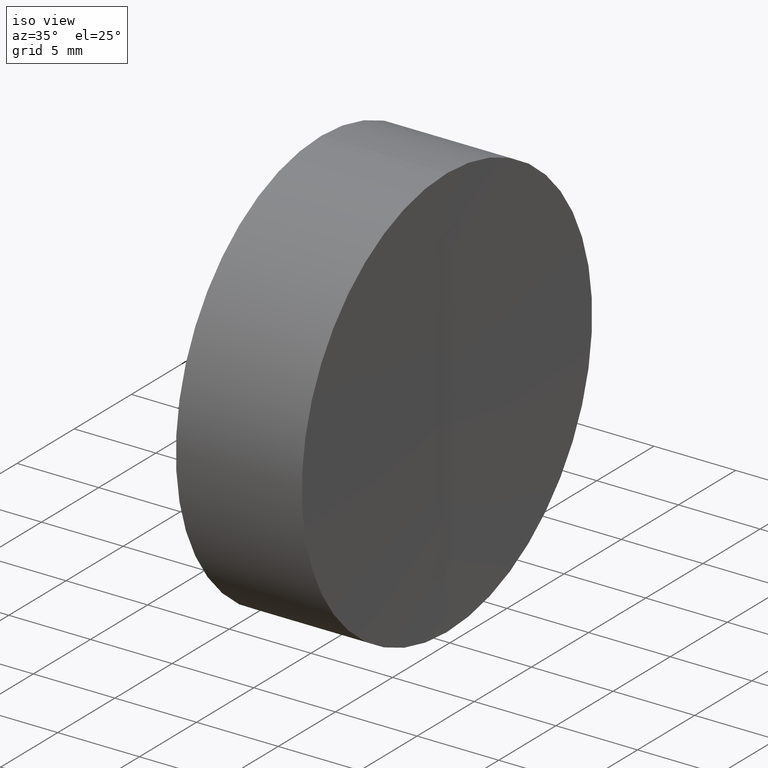
[diagram: clean part render]
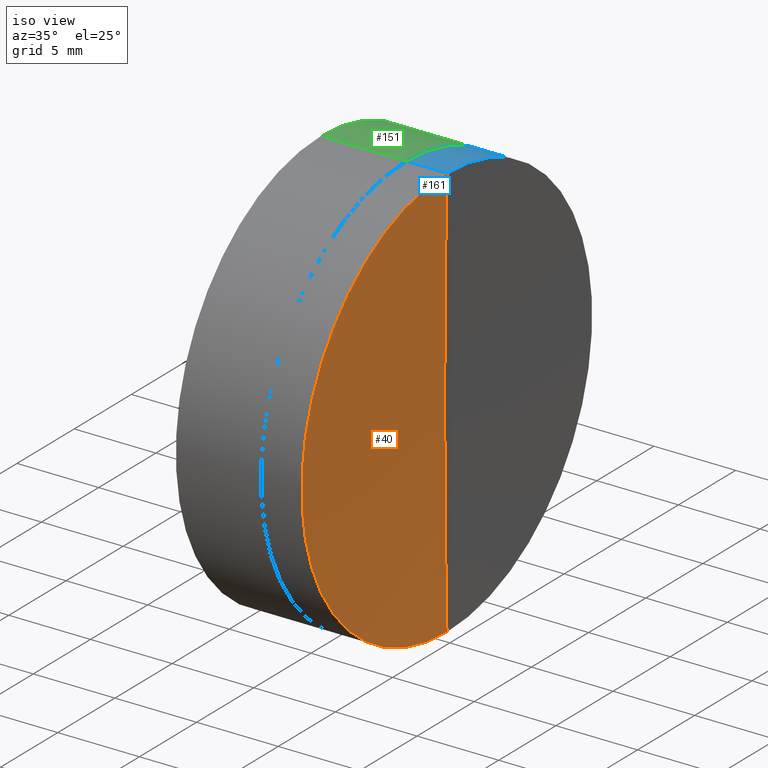
[diagram: same view with three faces highlighted in distinct colors, each labeled with its STEP entity id]
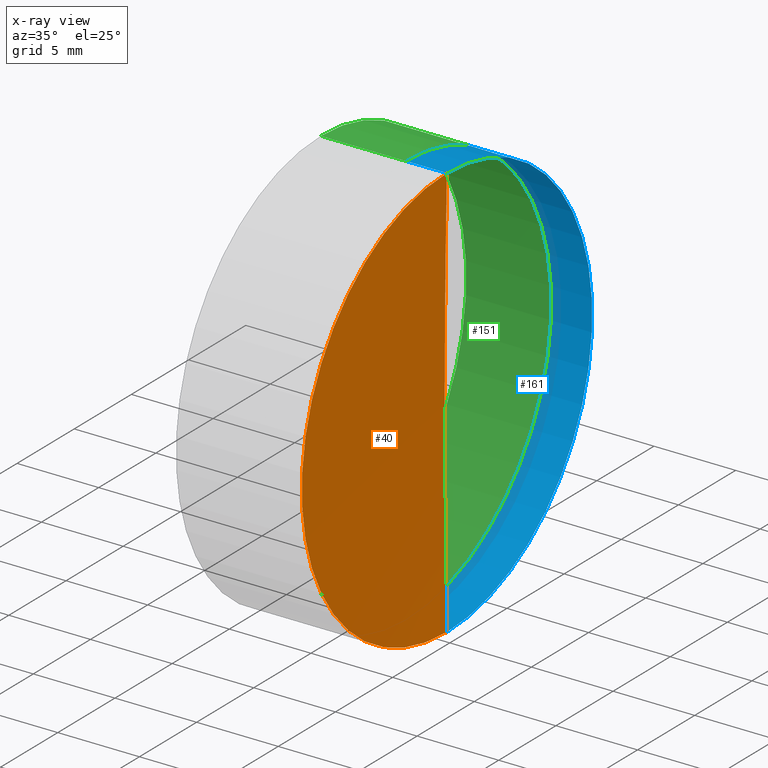
[diagram: x-ray of the same camera — body ghosted, the three highlighted faces saturated]
A machine part, iso view with three faces highlighted in distinct colors.
The next image is the same camera in x-ray (body ghosted, the three faces saturated) — at least one of them is partly hidden behind the body in this view.
Their STEP definitions:

[orange] entity #40 — the highlighted spherical surface has radius 600 mm.
#2 = AXIS2_PLACEMENT_3D ( 'NONE', #339, #309, #262 ) ;
#5 = CARTESIAN_POINT ( 'NONE',  ( 859.6946505410971900, 0.0000000000000000000, 0.0000000000000000000 ) ) ;
#18 = CARTESIAN_POINT ( 'NONE',  ( 259.6946505410971900, 0.0000000000000000000, -3.673940397442059500E-014 ) ) ;
#23 = CIRCLE ( 'NONE', #347, 600.0000000000000000 ) ;
#25 = CIRCLE ( 'NONE', #2, 12.69999999999999900 ) ;
#40 = ADVANCED_FACE ( 'NONE', ( #137 ), #98, .F. ) ;
#53 = VERTEX_POINT ( 'NONE', #150 ) ;
#71 = AXIS2_PLACEMENT_3D ( 'NONE', #5, #96, #342 ) ;
#89 = AXIS2_PLACEMENT_3D ( 'NONE', #222, #267, #326 ) ;
#96 = DIRECTION ( 'NONE',  ( -0.0000000000000000000, -1.000000000000000000, -0.0000000000000000000 ) ) ;
#98 = SPHERICAL_SURFACE ( 'NONE', #71, 600.0000000000000000 ) ;
#101 = EDGE_CURVE ( 'NONE', #53, #133, #165, .T. ) ;
#133 = VERTEX_POINT ( 'NONE', #18 ) ;
#135 = ORIENTED_EDGE ( 'NONE', *, *, #186, .F. ) ;
#137 = FACE_OUTER_BOUND ( 'NONE', #330, .T. ) ;
#150 = CARTESIAN_POINT ( 'NONE',  ( 259.8290739324706900, 1.555301434917139400E-015, -12.69999999999999900 ) ) ;
#155 = CARTESIAN_POINT ( 'NONE',  ( 859.6946505410971900, 0.0000000000000000000, 0.0000000000000000000 ) ) ;
#165 = CIRCLE ( 'NONE', #89, 600.0000000000000000 ) ;
#175 = EDGE_CURVE ( 'NONE', #264, #133, #23, .T. ) ;
#186 = EDGE_CURVE ( 'NONE', #53, #264, #25, .T. ) ;
#213 = DIRECTION ( 'NONE',  ( 0.0000000000000000000, 1.224646799147353200E-016, -1.000000000000000000 ) ) ;
#219 = ORIENTED_EDGE ( 'NONE', *, *, #175, .F. ) ;
#222 = CARTESIAN_POINT ( 'NONE',  ( 859.6946505410971900, 0.0000000000000000000, 0.0000000000000000000 ) ) ;
#223 = ORIENTED_EDGE ( 'NONE', *, *, #101, .T. ) ;
#235 = DIRECTION ( 'NONE',  ( 0.0000000000000000000, -1.000000000000000000, -1.224646799147353200E-016 ) ) ;
#245 = CARTESIAN_POINT ( 'NONE',  ( 259.8290739324706900, 0.0000000000000000000, 12.69999999999999900 ) ) ;
#262 = DIRECTION ( 'NONE',  ( 0.0000000000000000000, 0.0000000000000000000, 1.000000000000000000 ) ) ;
#264 = VERTEX_POINT ( 'NONE', #245 ) ;
#267 = DIRECTION ( 'NONE',  ( 0.0000000000000000000, 1.000000000000000000, -0.0000000000000000000 ) ) ;
#309 = DIRECTION ( 'NONE',  ( -1.000000000000000000, -0.0000000000000000000, -0.0000000000000000000 ) ) ;
#326 = DIRECTION ( 'NONE',  ( 0.0000000000000000000, 0.0000000000000000000, 1.000000000000000000 ) ) ;
#330 = EDGE_LOOP ( 'NONE', ( #219, #135, #223 ) ) ;
#339 = CARTESIAN_POINT ( 'NONE',  ( 259.8290739324706900, 0.0000000000000000000, 0.0000000000000000000 ) ) ;
#342 = DIRECTION ( 'NONE',  ( 0.0000000000000000000, 0.0000000000000000000, -1.000000000000000000 ) ) ;
#347 = AXIS2_PLACEMENT_3D ( 'NONE', #155, #235, #213 ) ;

[blue] entity #161 — the highlighted cylindrical surface (partial cylindrical patch) has radius 12.7 mm, axis along (-1, -0, -0).
#15 = DIRECTION ( 'NONE',  ( 0.0000000000000000000, 0.0000000000000000000, 1.000000000000000000 ) ) ;
#22 = AXIS2_PLACEMENT_3D ( 'NONE', #181, #238, #302 ) ;
#53 = VERTEX_POINT ( 'NONE', #150 ) ;
#56 = AXIS2_PLACEMENT_3D ( 'NONE', #266, #121, #15 ) ;
#57 = ORIENTED_EDGE ( 'NONE', *, *, #274, .F. ) ;
#69 = CARTESIAN_POINT ( 'NONE',  ( 259.8290739324706900, 0.0000000000000000000, 0.0000000000000000000 ) ) ;
#78 = FACE_OUTER_BOUND ( 'NONE', #336, .T. ) ;
#84 = LINE ( 'NONE', #307, #240 ) ;
#85 = CIRCLE ( 'NONE', #114, 12.69999999999999900 ) ;
#94 = EDGE_CURVE ( 'NONE', #295, #243, #115, .T. ) ;
#114 = AXIS2_PLACEMENT_3D ( 'NONE', #69, #154, #194 ) ;
#115 = CIRCLE ( 'NONE', #22, 12.70000000000002900 ) ;
#121 = DIRECTION ( 'NONE',  ( -1.000000000000000000, -0.0000000000000000000, -0.0000000000000000000 ) ) ;
#129 = DIRECTION ( 'NONE',  ( -1.000000000000000000, -0.0000000000000000000, -0.0000000000000000000 ) ) ;
#147 = DIRECTION ( 'NONE',  ( -1.000000000000000000, -0.0000000000000000000, -0.0000000000000000000 ) ) ;
#150 = CARTESIAN_POINT ( 'NONE',  ( 259.8290739324706900, 1.555301434917139400E-015, -12.69999999999999900 ) ) ;
#154 = DIRECTION ( 'NONE',  ( -1.000000000000000000, -0.0000000000000000000, -0.0000000000000000000 ) ) ;
#161 = ADVANCED_FACE ( 'NONE', ( #78 ), #255, .T. ) ;
#178 = CARTESIAN_POINT ( 'NONE',  ( 257.3378375505981200, 1.555301434917142800E-015, -12.70000000000003500 ) ) ;
#180 = LINE ( 'NONE', #220, #272 ) ;
#181 = CARTESIAN_POINT ( 'NONE',  ( 257.3378375505981200, 0.0000000000000000000, 0.0000000000000000000 ) ) ;
#194 = DIRECTION ( 'NONE',  ( 0.0000000000000000000, 0.0000000000000000000, 1.000000000000000000 ) ) ;
#202 = ORIENTED_EDGE ( 'NONE', *, *, #265, .T. ) ;
#215 = ORIENTED_EDGE ( 'NONE', *, *, #94, .F. ) ;
#220 = CARTESIAN_POINT ( 'NONE',  ( 252.1199418144257200, 0.0000000000000000000, 12.70000000000001400 ) ) ;
#229 = EDGE_CURVE ( 'NONE', #264, #53, #85, .T. ) ;
#234 = ORIENTED_EDGE ( 'NONE', *, *, #229, .T. ) ;
#238 = DIRECTION ( 'NONE',  ( -1.000000000000000000, -0.0000000000000000000, -0.0000000000000000000 ) ) ;
#240 = VECTOR ( 'NONE', #147, 1000.000000000000000 ) ;
#243 = VERTEX_POINT ( 'NONE', #178 ) ;
#245 = CARTESIAN_POINT ( 'NONE',  ( 259.8290739324706900, 0.0000000000000000000, 12.69999999999999900 ) ) ;
#255 = CYLINDRICAL_SURFACE ( 'NONE', #56, 12.70000000000001400 ) ;
#264 = VERTEX_POINT ( 'NONE', #245 ) ;
#265 = EDGE_CURVE ( 'NONE', #53, #243, #84, .T. ) ;
#266 = CARTESIAN_POINT ( 'NONE',  ( 252.1199418144257200, 0.0000000000000000000, 0.0000000000000000000 ) ) ;
#272 = VECTOR ( 'NONE', #129, 1000.000000000000000 ) ;
#274 = EDGE_CURVE ( 'NONE', #264, #295, #180, .T. ) ;
#278 = CARTESIAN_POINT ( 'NONE',  ( 257.3378375505981200, 0.0000000000000000000, 12.70000000000003500 ) ) ;
#295 = VERTEX_POINT ( 'NONE', #278 ) ;
#302 = DIRECTION ( 'NONE',  ( 0.0000000000000000000, 0.0000000000000000000, 1.000000000000000000 ) ) ;
#307 = CARTESIAN_POINT ( 'NONE',  ( 252.1199418144257200, 1.555301434917140200E-015, -12.70000000000001400 ) ) ;
#336 = EDGE_LOOP ( 'NONE', ( #234, #202, #215, #57 ) ) ;

[green] entity #151 — the highlighted cylindrical surface (partial cylindrical patch) has radius 12.7 mm, axis along (-1, -0, 0).
#4 = CIRCLE ( 'NONE', #167, 12.70000000000004500 ) ;
#9 = CARTESIAN_POINT ( 'NONE',  ( -0.8160621761658039000, 0.0000000000000000000, 0.0000000000000000000 ) ) ;
#21 = DIRECTION ( 'NONE',  ( -1.000000000000000000, -0.0000000000000000000, 1.836970198721029900E-016 ) ) ;
#29 = LINE ( 'NONE', #247, #332 ) ;
#30 = EDGE_CURVE ( 'NONE', #163, #271, #325, .T. ) ;
#44 = VECTOR ( 'NONE', #21, 1000.000000000000000 ) ;
#47 = DIRECTION ( 'NONE',  ( -1.000000000000000000, -0.0000000000000000000, 1.836970198721029900E-016 ) ) ;
#50 = CYLINDRICAL_SURFACE ( 'NONE', #131, 12.70000000000004500 ) ;
#67 = VERTEX_POINT ( 'NONE', #244 ) ;
#93 = CARTESIAN_POINT ( 'NONE',  ( 252.1199418144257200, 0.0000000000000000000, 12.69999999999998900 ) ) ;
#102 = CARTESIAN_POINT ( 'NONE',  ( 257.3378375505981200, 0.0000000000000000000, 12.69999999999999900 ) ) ;
#119 = ORIENTED_EDGE ( 'NONE', *, *, #254, .T. ) ;
#123 = ORIENTED_EDGE ( 'NONE', *, *, #30, .T. ) ;
#127 = DIRECTION ( 'NONE',  ( -1.000000000000000000, -0.0000000000000000000, 1.836970198721029900E-016 ) ) ;
#131 = AXIS2_PLACEMENT_3D ( 'NONE', #9, #127, #285 ) ;
#134 = CARTESIAN_POINT ( 'NONE',  ( 252.1199418144257200, 0.0000000000000000000, -4.646359015143001300E-014 ) ) ;
#139 = DIRECTION ( 'NONE',  ( 0.0000000000000000000, 0.0000000000000000000, 1.000000000000000000 ) ) ;
#151 = ADVANCED_FACE ( 'NONE', ( #249 ), #50, .T. ) ;
#163 = VERTEX_POINT ( 'NONE', #102 ) ;
#167 = AXIS2_PLACEMENT_3D ( 'NONE', #134, #217, #139 ) ;
#193 = ORIENTED_EDGE ( 'NONE', *, *, #294, .F. ) ;
#205 = ORIENTED_EDGE ( 'NONE', *, *, #252, .F. ) ;
#217 = DIRECTION ( 'NONE',  ( -1.000000000000000000, -0.0000000000000000000, 1.836970198721029900E-016 ) ) ;
#226 = EDGE_LOOP ( 'NONE', ( #123, #119, #193, #205 ) ) ;
#232 = LINE ( 'NONE', #241, #44 ) ;
#233 = DIRECTION ( 'NONE',  ( -1.000000000000000000, -0.0000000000000000000, 1.836970198721029900E-016 ) ) ;
#241 = CARTESIAN_POINT ( 'NONE',  ( -0.8160621761658015700, 0.0000000000000000000, 12.70000000000004500 ) ) ;
#244 = CARTESIAN_POINT ( 'NONE',  ( 252.1199418144257200, 1.555301434917142800E-015, -12.70000000000004500 ) ) ;
#247 = CARTESIAN_POINT ( 'NONE',  ( -0.8160621761658063400, 1.555301434917144300E-015, -12.70000000000004500 ) ) ;
#249 = FACE_OUTER_BOUND ( 'NONE', #226, .T. ) ;
#252 = EDGE_CURVE ( 'NONE', #163, #276, #232, .T. ) ;
#254 = EDGE_CURVE ( 'NONE', #271, #67, #29, .T. ) ;
#271 = VERTEX_POINT ( 'NONE', #337 ) ;
#276 = VERTEX_POINT ( 'NONE', #93 ) ;
#285 = DIRECTION ( 'NONE',  ( 1.878145495644174200E-016, 0.0000000000000000000, 1.000000000000000000 ) ) ;
#294 = EDGE_CURVE ( 'NONE', #276, #67, #4, .T. ) ;
#297 = AXIS2_PLACEMENT_3D ( 'NONE', #300, #233, #324 ) ;
#300 = CARTESIAN_POINT ( 'NONE',  ( 257.3378375505981200, 0.0000000000000000000, -4.742210204816824600E-014 ) ) ;
#324 = DIRECTION ( 'NONE',  ( 0.0000000000000000000, 0.0000000000000000000, 1.000000000000000000 ) ) ;
#325 = CIRCLE ( 'NONE', #297, 12.70000000000004500 ) ;
#332 = VECTOR ( 'NONE', #47, 1000.000000000000000 ) ;
#337 = CARTESIAN_POINT ( 'NONE',  ( 257.3378375505981200, 1.555301434917144300E-015, -12.70000000000009300 ) ) ;